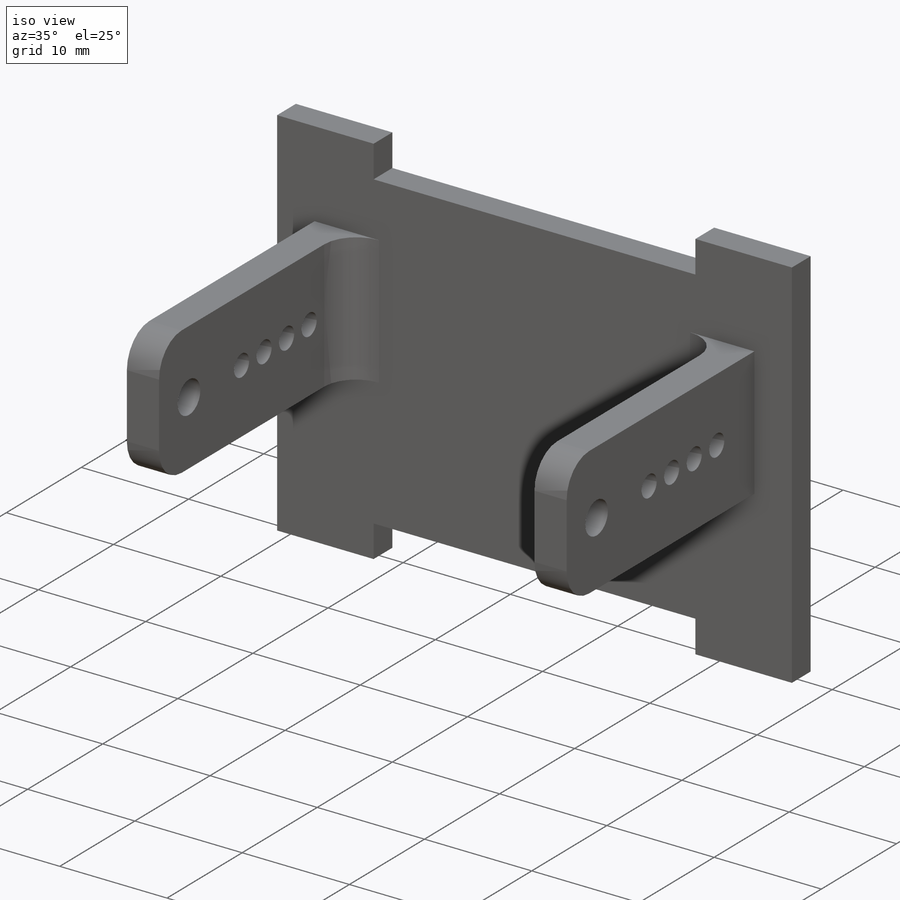
[diagram: iso view]
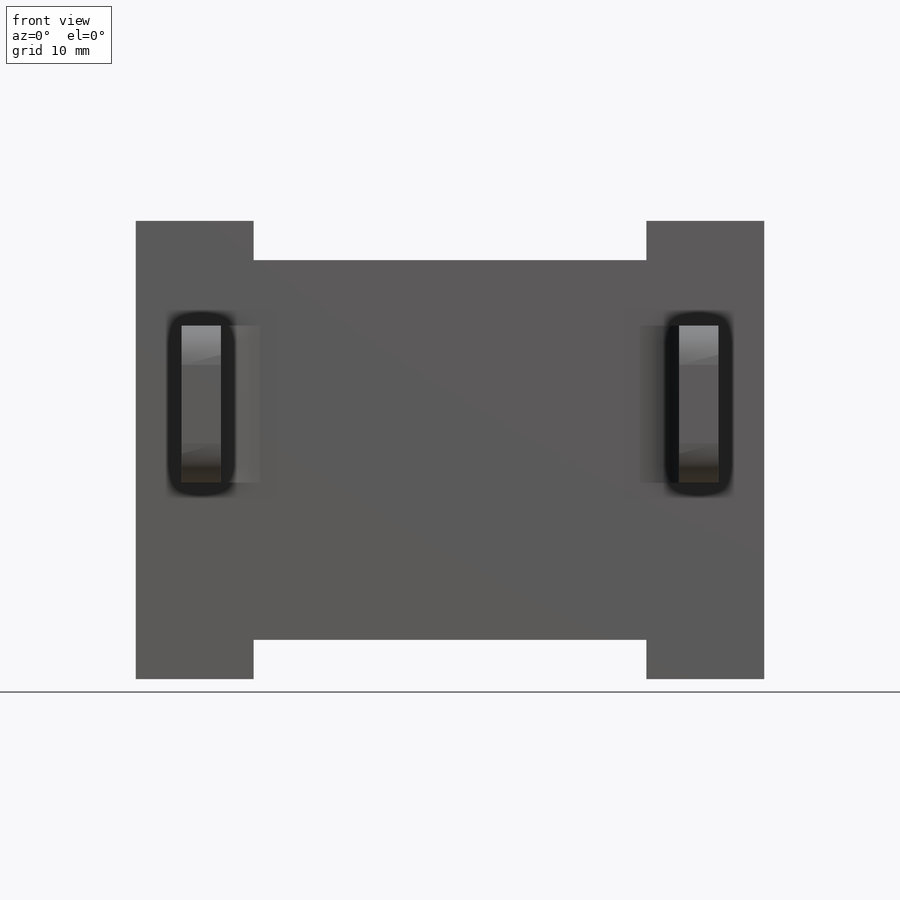
[diagram: front view]
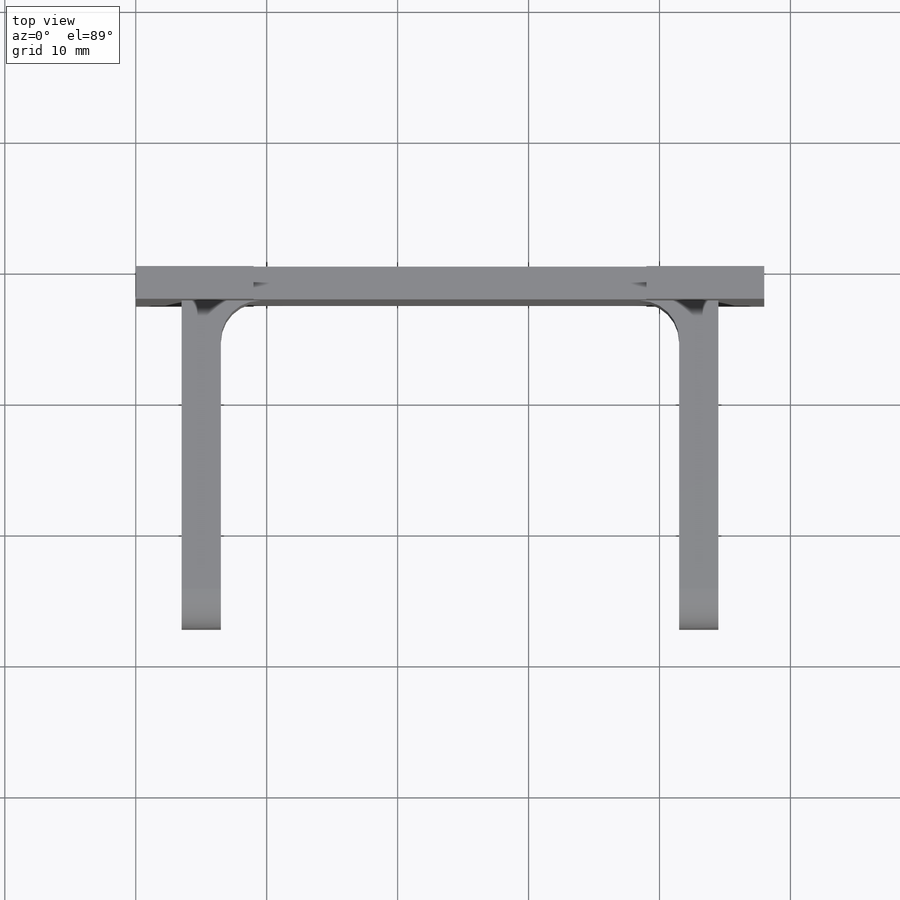
[diagram: top view]
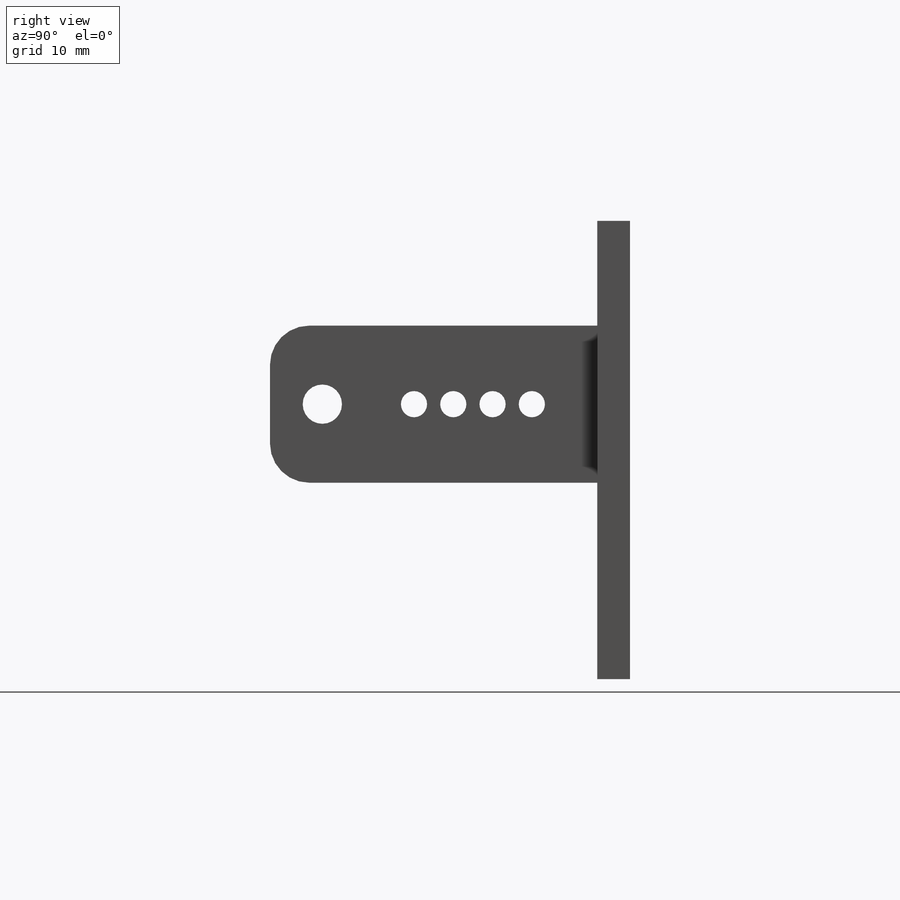
[diagram: right view]
SOLIDWORKS PART (.sldprt)
format: sldprt  version: not decoded by parser v0  size: 248,832 bytes
history: native  units: mm
features: plane x3, sketch x3, extrude x2, fillet x2, material x1, cut_extrude x1 (+10 scaffold rows collapsed)
feature tree (22):
  scaffold x10  (default folders/planes/origin — collapsed)
  material  "Matériau <non spécifié>"
  plane  "Plan de face"
  plane  "Plan de dessus"
  plane  "Plan de droite"
  sketch  "Esquisse1"  dims[D1=48.0mm D2=35.0mm D3=30.0mm D4=30.0mm D5=3.0mm D6=3.0mm D7=9.0mm D8=9.0mm]
  extrude  "Boss.-Extru.1"  Depth=2.5mm
  sketch  "Esquisse2"  dims[c1.D1=3.0mm c1.D2=12.0mm c1.D3=3.0mm c1.D4=12.0mm c1.D5=5.0mm c1.D6=35.0mm c1.D7=8.0mm c1.D8=8.0mm c1.D9=12.0mm c2.D5=3.5mm c2.D9=12.0mm]
  extrude  "Boss.-Extru.2"  Depth=25mm
  sketch  "Esquisse3"  dims[c1.D1=2.0mm c1.D2=2.0mm c1.D3=2.0mm c1.D4=2.0mm c1.D5=2.0mm c1.D6=2.0mm c1.D7=2.0mm c1.D8=2.0mm c1.D9=2.0mm c1.D10=2.0mm c1.D11=2.0mm c1.D12=2.0mm c1.D13=3.0mm c1.D14=3.0mm c1.D15=3.0mm c2.D5=6.0mm c2.D6=6.0mm c2.D7=6.0mm c2.D8=6.0mm c2.D9=5.0mm c2.D10=3.0mm c2.D11=3.0mm c2.D12=3.0mm c2.D14=16.0mm c2.D15=6.0mm]
  cut_extrude  "Enlèv. mat.-Extru.1"  Depth=50mm
  fillet  "Congé1"  Radius=3mm
  fillet  "Congé2"  Radius=3mm
decode coverage: 8 of 8 modeling features carry decoded parameters
note: suppression state not decoded; provenance and decode notes live in map.json
